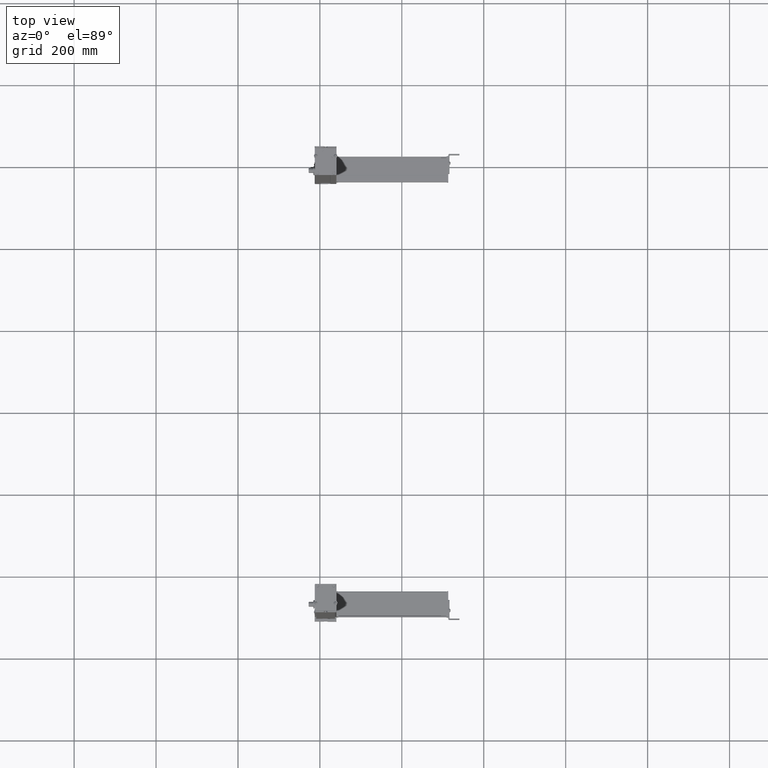
[diagram: clean part render]
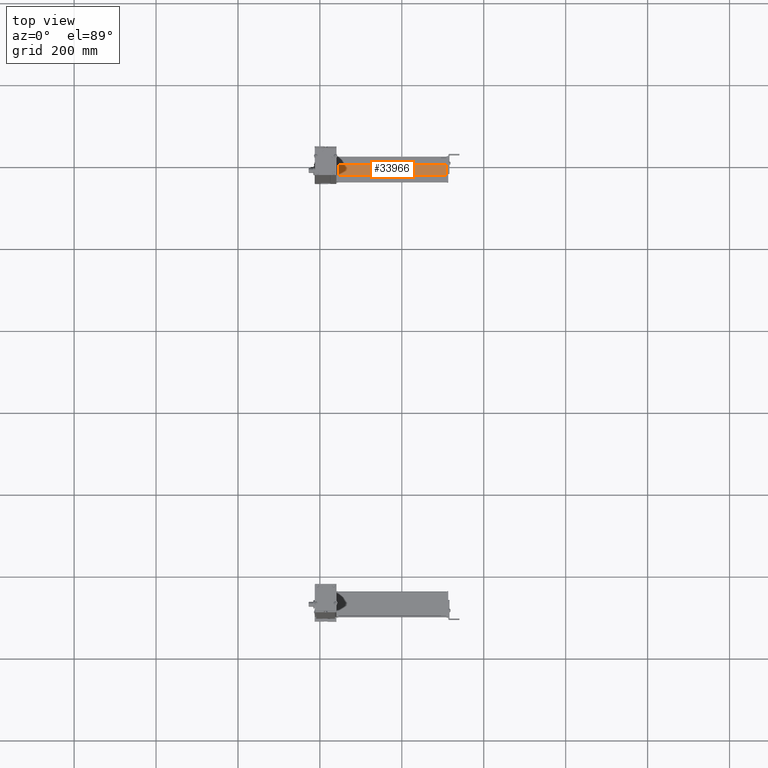
[diagram: same view with one face highlighted and labeled with its STEP entity id]
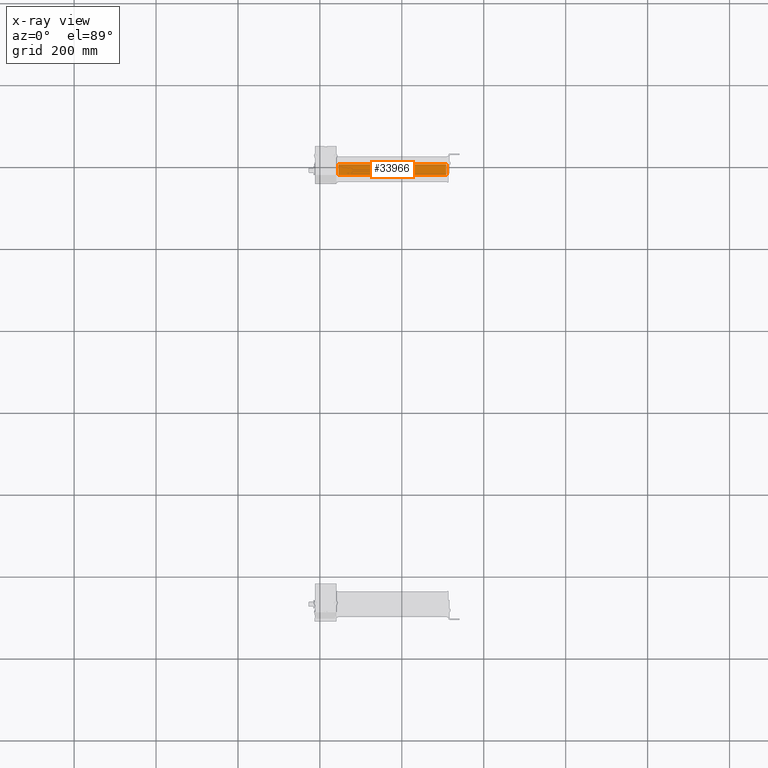
[diagram: x-ray of the same camera — body ghosted, the highlighted face saturated]
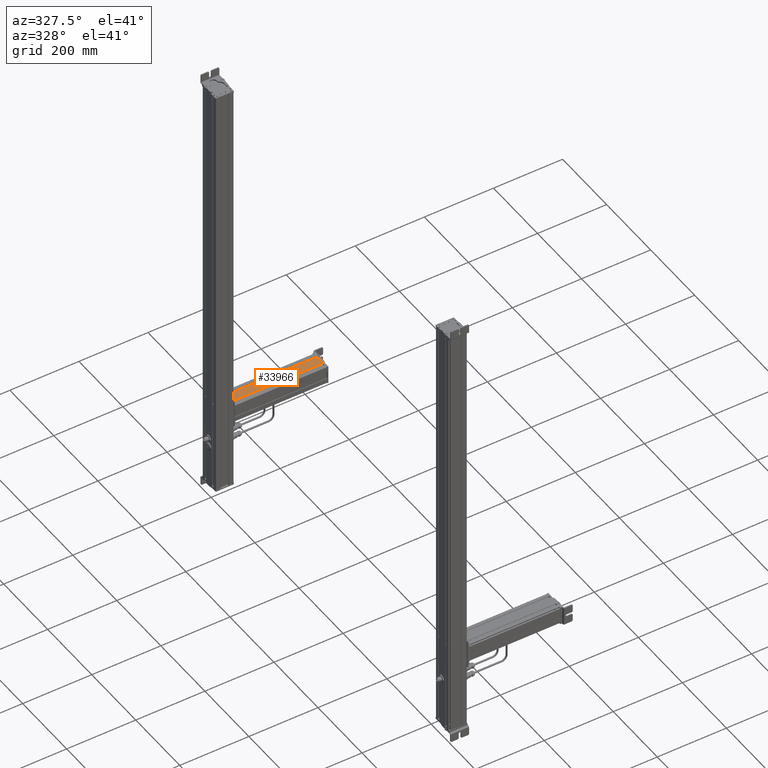
[diagram: same view with one face highlighted and labeled with its STEP entity id]
A machine part, top view. The second image highlights one B-rep face of the part: STEP entity #33966.
The next image is the same camera in x-ray: the body ghosted, the highlighted face saturated — about 0% of this face is hidden behind the body in this view.
A second angle (auxiliary view) of the same face is appended — the face is thin or edge-on in the first view.
In plain terms, the highlighted planar face has unit normal (0, 0, 1).
Its self-contained STEP definition (entity closure, byte-faithful):
#31901=CARTESIAN_POINT('Vertex',(608.195556641,166.010394004,248.500334725)) ;
#31904=CARTESIAN_POINT('Line Origine',(608.195556641,152.38909214,248.500334726)) ;
#31908=CARTESIAN_POINT('Vertex',(608.195556641,138.767790274,248.500334726)) ;
#33382=CARTESIAN_POINT('Axis2P3D Location',(343.195556641,133.067790275,248.500334726)) ;
#33929=CARTESIAN_POINT('Line Origine',(476.695556641,166.010394004,248.500334725)) ;
#33933=CARTESIAN_POINT('Vertex',(345.195556641,166.010394004,248.500334725)) ;
#33948=CARTESIAN_POINT('Line Origine',(476.695556641,138.767790274,248.500334726)) ;
#33952=CARTESIAN_POINT('Vertex',(345.195556641,138.767790274,248.500334726)) ;
#33955=CARTESIAN_POINT('Line Origine',(345.195556641,152.38909214,248.500334726)) ;
#31905=DIRECTION('Vector Direction',(0.,-1.,0.)) ;
#33383=DIRECTION('Axis2P3D Direction',(-2.83276944882E-016,-1.09048120098E-016,1.)) ;
#33384=DIRECTION('Axis2P3D XDirection',(1.09048120098E-016,-1.,-1.09048120098E-016)) ;
#33930=DIRECTION('Vector Direction',(1.,2.16134672475E-016,2.16134672475E-016)) ;
#33949=DIRECTION('Vector Direction',(1.,1.08067336237E-016,3.24202008712E-016)) ;
#33956=DIRECTION('Vector Direction',(0.,-1.,0.)) ;
#33385=AXIS2_PLACEMENT_3D('Plane Axis2P3D',#33382,#33383,#33384) ;
#33961=ORIENTED_EDGE('',*,*,#33954,.T.) ;
#33962=ORIENTED_EDGE('',*,*,#31910,.F.) ;
#33963=ORIENTED_EDGE('',*,*,#33935,.F.) ;
#33964=ORIENTED_EDGE('',*,*,#33959,.T.) ;
#31906=VECTOR('Line Direction',#31905,1.) ;
#33931=VECTOR('Line Direction',#33930,1.) ;
#33950=VECTOR('Line Direction',#33949,1.) ;
#33957=VECTOR('Line Direction',#33956,1.) ;
#33966=ADVANCED_FACE('Body.23',(#33965),#33386,.T.) ;
#31910=EDGE_CURVE('',#31902,#31909,#31907,.T.) ;
#33935=EDGE_CURVE('',#33934,#31902,#33932,.T.) ;
#33954=EDGE_CURVE('',#33953,#31909,#33951,.T.) ;
#33959=EDGE_CURVE('',#33934,#33953,#33958,.T.) ;
#33960=EDGE_LOOP('',(#33961,#33962,#33963,#33964)) ;
#33965=FACE_OUTER_BOUND('',#33960,.T.) ;
#31907=LINE('Line',#31904,#31906) ;
#33932=LINE('Line',#33929,#33931) ;
#33951=LINE('Line',#33948,#33950) ;
#33958=LINE('Line',#33955,#33957) ;
#33386=PLANE('Plane',#33385) ;
#31902=VERTEX_POINT('',#31901) ;
#31909=VERTEX_POINT('',#31908) ;
#33934=VERTEX_POINT('',#33933) ;
#33953=VERTEX_POINT('',#33952) ;